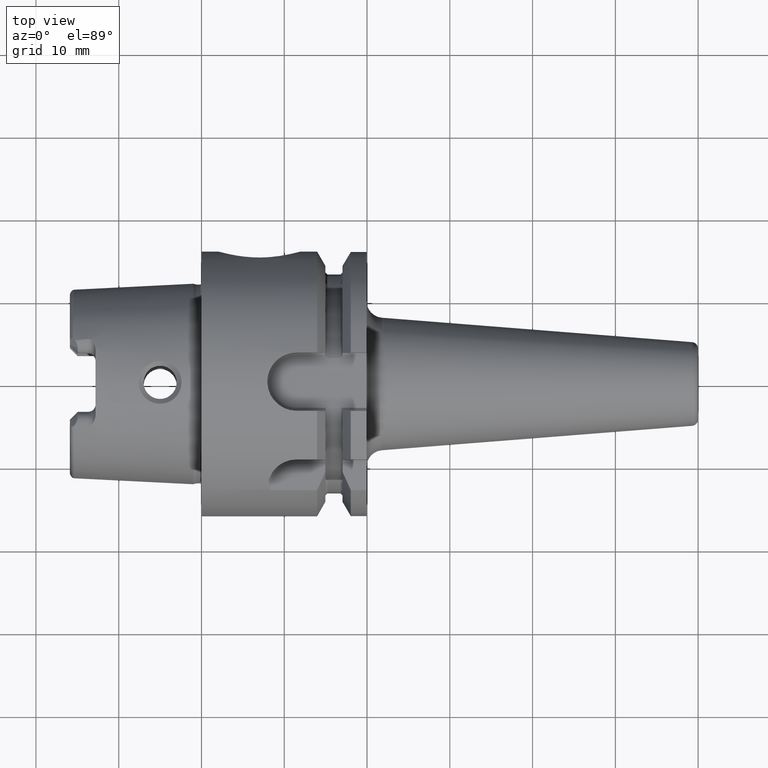
[diagram: clean part render]
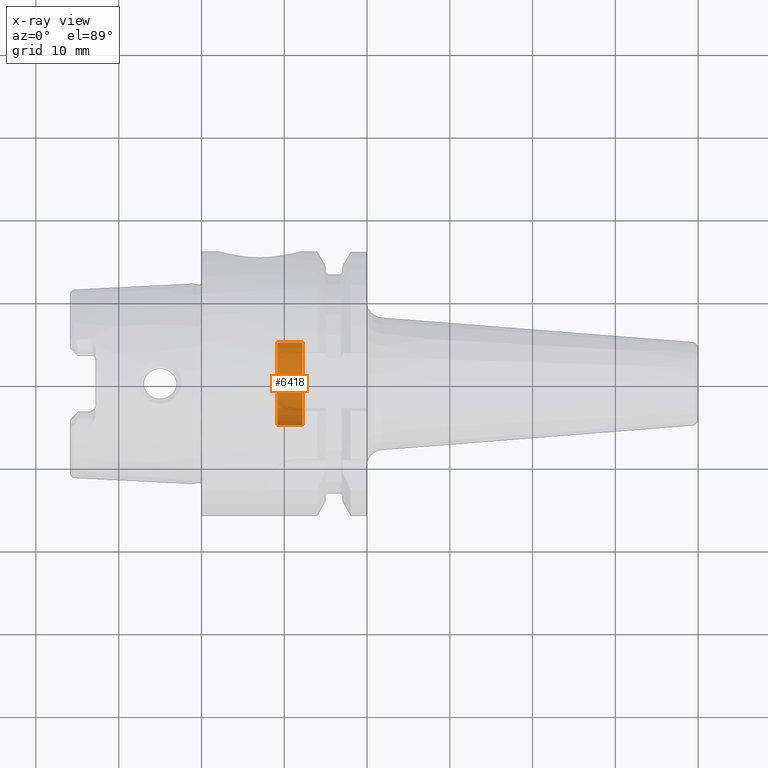
[diagram: x-ray — body ghosted, one internal face saturated and labeled with its STEP entity id]
A machine part, top view, then the same camera in x-ray: the body is ghosted and one INTERNAL B-rep face — a face not visible from any outside direction — is saturated and labeled: STEP entity #6418.
In plain terms, the highlighted cylindrical surface (partial cylindrical patch) has radius 5 mm, axis along (-1, 0, 0).
Its self-contained STEP definition (entity closure, byte-faithful):
#6367=CARTESIAN_POINT('',(1.22E1,0.E0,0.E0));
#6368=DIRECTION('',(-1.E0,0.E0,0.E0));
#6369=DIRECTION('',(0.E0,1.E0,0.E0));
#6370=AXIS2_PLACEMENT_3D('',#6367,#6368,#6369);
#6372=CARTESIAN_POINT('',(9.1625E0,0.E0,0.E0));
#6373=DIRECTION('',(1.E0,0.E0,0.E0));
#6374=DIRECTION('',(0.E0,-1.E0,0.E0));
#6375=AXIS2_PLACEMENT_3D('',#6372,#6373,#6374);
#6377=DIRECTION('',(1.E0,0.E0,0.E0));
#6378=VECTOR('',#6377,3.0375E0);
#6379=CARTESIAN_POINT('',(9.1625E0,5.E0,0.E0));
#6380=LINE('',#6379,#6378);
#6386=DIRECTION('',(1.E0,0.E0,0.E0));
#6387=VECTOR('',#6386,3.0375E0);
#6388=CARTESIAN_POINT('',(9.1625E0,-5.E0,0.E0));
#6389=LINE('',#6388,#6387);
#6395=CARTESIAN_POINT('',(9.1625E0,5.E0,0.E0));
#6396=CARTESIAN_POINT('',(1.22E1,5.E0,0.E0));
#6397=VERTEX_POINT('',#6395);
#6398=VERTEX_POINT('',#6396);
#6399=CARTESIAN_POINT('',(9.1625E0,-5.E0,0.E0));
#6400=CARTESIAN_POINT('',(1.22E1,-5.E0,0.E0));
#6401=VERTEX_POINT('',#6399);
#6402=VERTEX_POINT('',#6400);
#6403=CARTESIAN_POINT('',(1.588134051241E1,0.E0,0.E0));
#6404=DIRECTION('',(-1.E0,0.E0,0.E0));
#6405=DIRECTION('',(0.E0,1.E0,0.E0));
#6406=AXIS2_PLACEMENT_3D('',#6403,#6404,#6405);
#6407=CYLINDRICAL_SURFACE('',#6406,5.E0);
#6409=ORIENTED_EDGE('',*,*,#6408,.T.);
#6411=ORIENTED_EDGE('',*,*,#6410,.T.);
#6413=ORIENTED_EDGE('',*,*,#6412,.F.);
#6415=ORIENTED_EDGE('',*,*,#6414,.T.);
#6416=EDGE_LOOP('',(#6409,#6411,#6413,#6415));
#6417=FACE_OUTER_BOUND('',#6416,.F.);
#6418=ADVANCED_FACE('',(#6417),#6407,.F.);
#6371=CIRCLE('',#6370,5.E0);
#6376=CIRCLE('',#6375,5.E0);
#6408=EDGE_CURVE('',#6397,#6398,#6380,.T.);
#6410=EDGE_CURVE('',#6398,#6402,#6371,.T.);
#6412=EDGE_CURVE('',#6401,#6402,#6389,.T.);
#6414=EDGE_CURVE('',#6401,#6397,#6376,.T.);